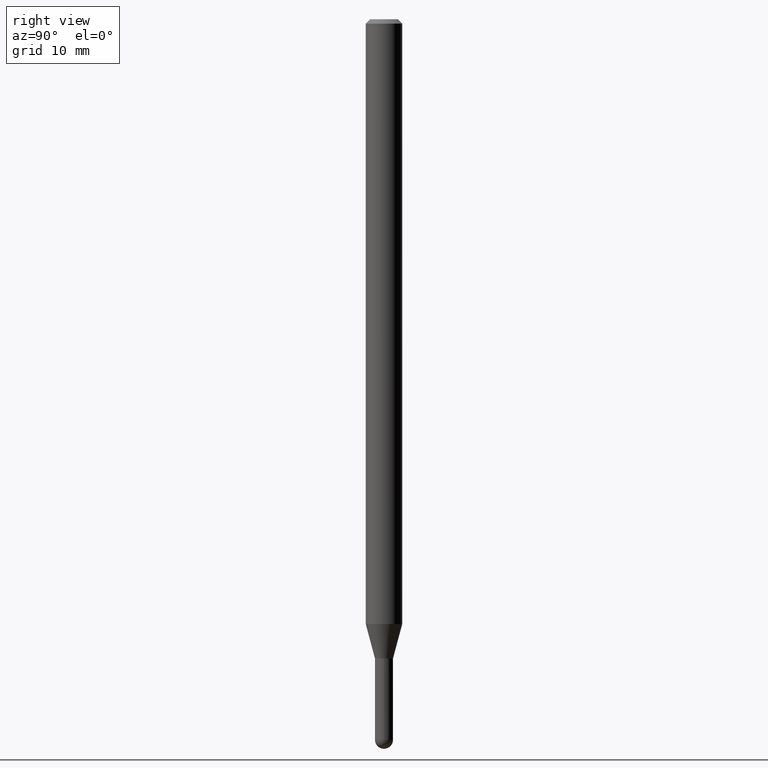
[diagram: clean part render]
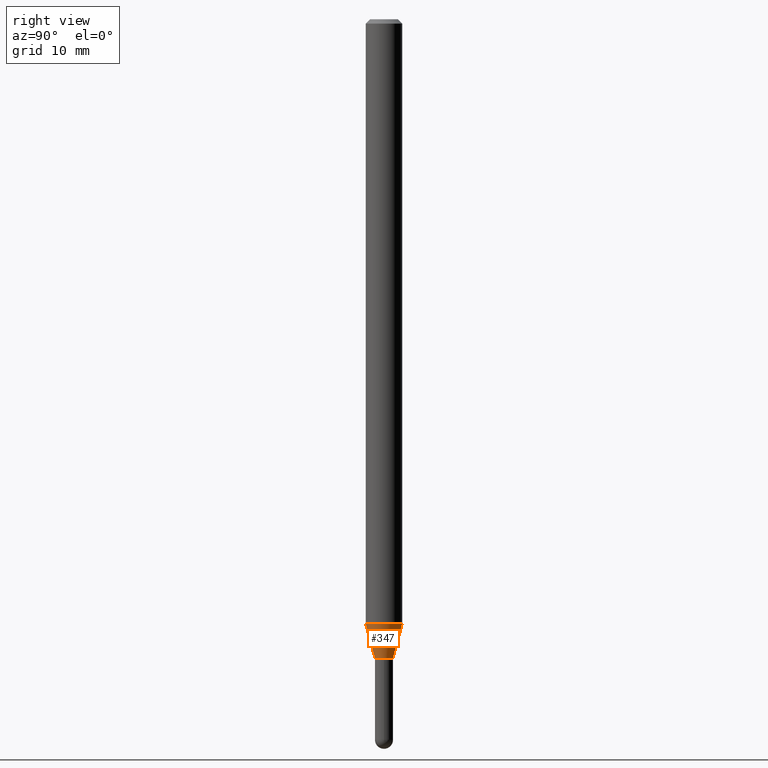
[diagram: same view with one face highlighted and labeled with its STEP entity id]
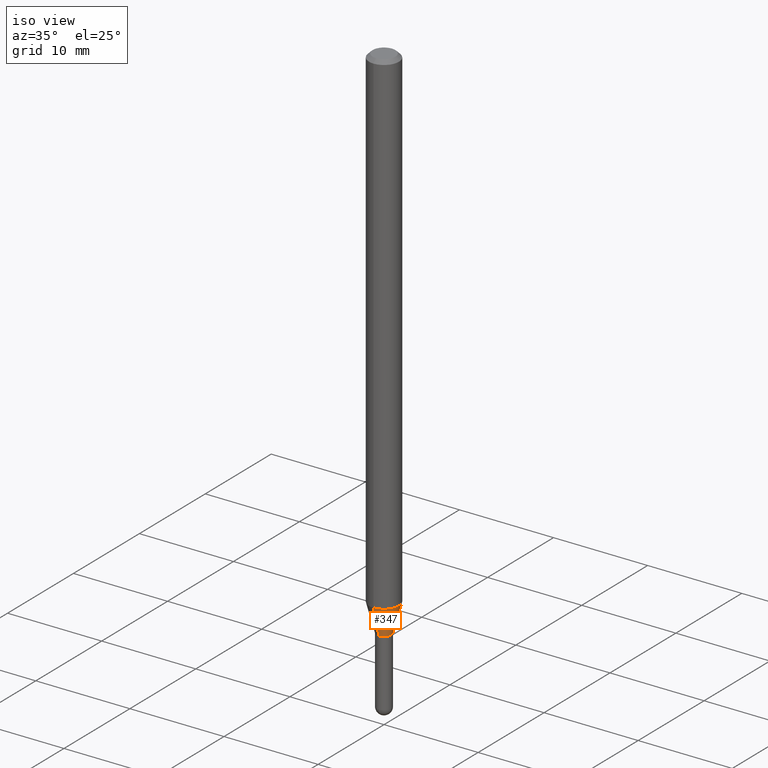
[diagram: same view with one face highlighted and labeled with its STEP entity id]
A machine part, right view. The second image highlights one B-rep face of the part: STEP entity #347.
A second angle (iso view) of the same face is appended — the face is thin or edge-on in the first view.
In plain terms, the highlighted conical surface has half-angle 15 deg.
Its self-contained STEP definition (entity closure, byte-faithful):
#38 = AXIS2_PLACEMENT_3D ( 'NONE', #377, #414, #264 ) ;
#56 = DIRECTION ( 'NONE',  ( -1.807323732225379443E-15, -0.2588190451025252359, 0.9659258262890670910 ) ) ;
#98 = CARTESIAN_POINT ( 'NONE',  ( 4.440892098501130047E-16, 0.06249999999999273498, -2.072440399561584101 ) ) ;
#112 = FACE_OUTER_BOUND ( 'NONE', #283, .T. ) ;
#114 = LINE ( 'NONE', #209, #483 ) ;
#131 = EDGE_CURVE ( 'NONE', #312, #286, #443, .T. ) ;
#169 = DIRECTION ( 'NONE',  ( 1.839019923739650408E-15, 0.2588190451025319527, 0.9659258262890650926 ) ) ;
#177 = EDGE_CURVE ( 'NONE', #294, #286, #243, .T. ) ;
#184 = DIRECTION ( 'NONE',  ( -6.982962677686265922E-15, -1.000000000000000000, 4.370956789862821150E-15 ) ) ;
#208 = EDGE_CURVE ( 'NONE', #417, #294, #416, .T. ) ;
#209 = CARTESIAN_POINT ( 'NONE',  ( -2.164718430082201463E-16, -0.03100000000000756664, -2.189999999999999947 ) ) ;
#220 = CONICAL_SURFACE ( 'NONE', #376, 0.03099999999999992345, 0.2617993877991575680 ) ;
#224 = CARTESIAN_POINT ( 'NONE',  ( 3.321787289678987037E-16, 0.03099999999999227679, -2.189999999999999947 ) ) ;
#225 = CARTESIAN_POINT ( 'NONE',  ( 5.068127442218456188E-29, -7.235830998373855242E-15, -2.072440399561584101 ) ) ;
#236 = VECTOR ( 'NONE', #169, 39.37007874015748854 ) ;
#241 = CARTESIAN_POINT ( 'NONE',  ( -4.364351673553410837E-16, -0.06250000000000725808, -2.072440399561583657 ) ) ;
#243 = LINE ( 'NONE', #463, #236 ) ;
#260 = EDGE_CURVE ( 'NONE', #417, #312, #114, .T. ) ;
#264 = DIRECTION ( 'NONE',  ( -6.982962677686265922E-15, -1.000000000000000000, 0.000000000000000000 ) ) ;
#276 = CARTESIAN_POINT ( 'NONE',  ( 5.355617995483203456E-29, -7.646284973884410228E-15, -2.189999999999999947 ) ) ;
#283 = EDGE_LOOP ( 'NONE', ( #429, #396, #390, #358 ) ) ;
#285 = DIRECTION ( 'NONE',  ( -6.982962677686265922E-15, -1.000000000000000000, 0.000000000000000000 ) ) ;
#286 = VERTEX_POINT ( 'NONE', #98 ) ;
#294 = VERTEX_POINT ( 'NONE', #224 ) ;
#312 = VERTEX_POINT ( 'NONE', #241 ) ;
#347 = ADVANCED_FACE ( 'NONE', ( #112 ), #220, .T. ) ;
#358 = ORIENTED_EDGE ( 'NONE', *, *, #260, .F. ) ;
#376 = AXIS2_PLACEMENT_3D ( 'NONE', #276, #507, #285 ) ;
#377 = CARTESIAN_POINT ( 'NONE',  ( 5.355617995483203456E-29, -7.646284973884410228E-15, -2.189999999999999947 ) ) ;
#382 = DIRECTION ( 'NONE',  ( -2.445487669170412374E-29, 3.491454325974616325E-15, 1.000000000000000000 ) ) ;
#390 = ORIENTED_EDGE ( 'NONE', *, *, #131, .F. ) ;
#396 = ORIENTED_EDGE ( 'NONE', *, *, #177, .T. ) ;
#410 = CARTESIAN_POINT ( 'NONE',  ( -2.164718430082201463E-16, -0.03100000000000756664, -2.189999999999999947 ) ) ;
#414 = DIRECTION ( 'NONE',  ( -2.445487669170412374E-29, 3.491454325974616325E-15, 1.000000000000000000 ) ) ;
#416 = CIRCLE ( 'NONE', #38, 0.03099999999999992345 ) ;
#417 = VERTEX_POINT ( 'NONE', #410 ) ;
#422 = AXIS2_PLACEMENT_3D ( 'NONE', #225, #382, #184 ) ;
#429 = ORIENTED_EDGE ( 'NONE', *, *, #208, .T. ) ;
#443 = CIRCLE ( 'NONE', #422, 0.06250000000000000000 ) ;
#463 = CARTESIAN_POINT ( 'NONE',  ( 2.202682480856840330E-16, 0.03099999999999227679, -2.189999999999999947 ) ) ;
#483 = VECTOR ( 'NONE', #56, 39.37007874015748143 ) ;
#507 = DIRECTION ( 'NONE',  ( -2.445487669170412374E-29, 3.491454325974616325E-15, 1.000000000000000000 ) ) ;